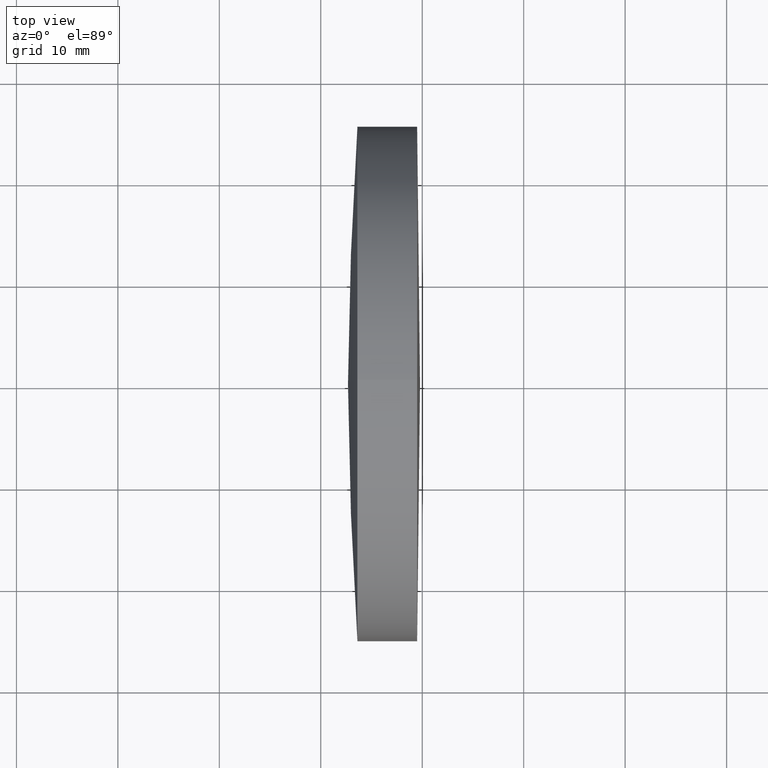
[diagram: clean part render]
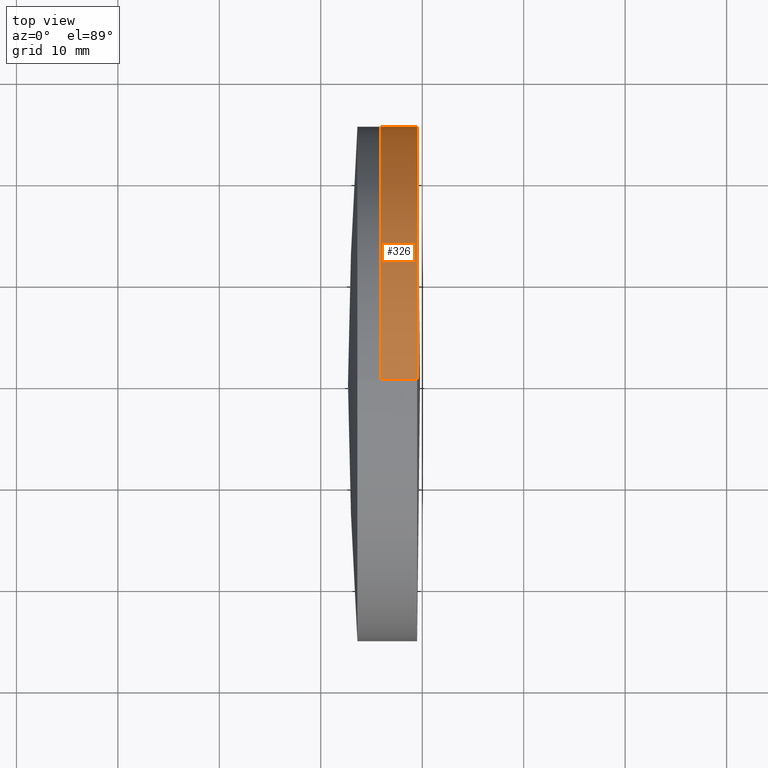
[diagram: same view with one face highlighted and labeled with its STEP entity id]
A machine part, top view. The second image highlights one B-rep face of the part: STEP entity #326.
In plain terms, the highlighted cylindrical surface (partial cylindrical patch) has radius 25.4 mm, axis along (-1, -0, -0).
Its self-contained STEP definition (entity closure, byte-faithful):
#18 = ORIENTED_EDGE ( 'NONE', *, *, #317, .T. ) ;
#23 = ORIENTED_EDGE ( 'NONE', *, *, #141, .F. ) ;
#49 = CIRCLE ( 'NONE', #313, 25.40000000000006300 ) ;
#58 = CARTESIAN_POINT ( 'NONE',  ( 715.9340020172002100, 0.0000000000000000000, 0.0000000000000000000 ) ) ;
#67 = CARTESIAN_POINT ( 'NONE',  ( 719.4956594297797200, 0.0000000000000000000, 0.0000000000000000000 ) ) ;
#68 = EDGE_LOOP ( 'NONE', ( #288, #18, #181, #23 ) ) ;
#72 = VECTOR ( 'NONE', #331, 1000.000000000000000 ) ;
#73 = CARTESIAN_POINT ( 'NONE',  ( -0.5519199926577972300, 3.110602869834265800E-015, -25.39999999999991000 ) ) ;
#75 = VERTEX_POINT ( 'NONE', #302 ) ;
#79 = VERTEX_POINT ( 'NONE', #218 ) ;
#82 = CARTESIAN_POINT ( 'NONE',  ( -0.5519199926577972300, 0.0000000000000000000, 25.39999999999991000 ) ) ;
#89 = DIRECTION ( 'NONE',  ( 0.0000000000000000000, 0.0000000000000000000, 1.000000000000000000 ) ) ;
#95 = DIRECTION ( 'NONE',  ( -1.000000000000000000, -0.0000000000000000000, -0.0000000000000000000 ) ) ;
#111 = EDGE_CURVE ( 'NONE', #120, #163, #49, .T. ) ;
#120 = VERTEX_POINT ( 'NONE', #221 ) ;
#141 = EDGE_CURVE ( 'NONE', #75, #120, #225, .T. ) ;
#156 = DIRECTION ( 'NONE',  ( -1.000000000000000000, -0.0000000000000000000, -0.0000000000000000000 ) ) ;
#162 = DIRECTION ( 'NONE',  ( 0.0000000000000000000, 0.0000000000000000000, 1.000000000000000000 ) ) ;
#163 = VERTEX_POINT ( 'NONE', #245 ) ;
#181 = ORIENTED_EDGE ( 'NONE', *, *, #111, .F. ) ;
#194 = EDGE_CURVE ( 'NONE', #75, #79, #205, .T. ) ;
#205 = CIRCLE ( 'NONE', #226, 25.39999999999975700 ) ;
#209 = LINE ( 'NONE', #73, #72 ) ;
#212 = DIRECTION ( 'NONE',  ( -1.000000000000000000, -0.0000000000000000000, -0.0000000000000000000 ) ) ;
#215 = VECTOR ( 'NONE', #156, 1000.000000000000000 ) ;
#218 = CARTESIAN_POINT ( 'NONE',  ( 719.4956594297797200, 3.110602869834256700E-015, -25.39999999999975700 ) ) ;
#221 = CARTESIAN_POINT ( 'NONE',  ( 715.9340020172002100, 0.0000000000000000000, 25.39999999999994500 ) ) ;
#223 = DIRECTION ( 'NONE',  ( -1.000000000000000000, -0.0000000000000000000, -0.0000000000000000000 ) ) ;
#225 = LINE ( 'NONE', #82, #215 ) ;
#226 = AXIS2_PLACEMENT_3D ( 'NONE', #67, #95, #89 ) ;
#245 = CARTESIAN_POINT ( 'NONE',  ( 715.9340020172002100, 3.110602869834270600E-015, -25.39999999999995200 ) ) ;
#249 = FACE_OUTER_BOUND ( 'NONE', #68, .T. ) ;
#267 = DIRECTION ( 'NONE',  ( 0.0000000000000000000, 0.0000000000000000000, 1.000000000000000000 ) ) ;
#288 = ORIENTED_EDGE ( 'NONE', *, *, #194, .T. ) ;
#302 = CARTESIAN_POINT ( 'NONE',  ( 719.4956594297797200, 0.0000000000000000000, 25.39999999999975700 ) ) ;
#303 = AXIS2_PLACEMENT_3D ( 'NONE', #308, #212, #267 ) ;
#308 = CARTESIAN_POINT ( 'NONE',  ( -0.5519199926577972300, 0.0000000000000000000, 0.0000000000000000000 ) ) ;
#313 = AXIS2_PLACEMENT_3D ( 'NONE', #58, #223, #162 ) ;
#317 = EDGE_CURVE ( 'NONE', #79, #163, #209, .T. ) ;
#326 = ADVANCED_FACE ( 'NONE', ( #249 ), #333, .T. ) ;
#331 = DIRECTION ( 'NONE',  ( -1.000000000000000000, -0.0000000000000000000, -0.0000000000000000000 ) ) ;
#333 = CYLINDRICAL_SURFACE ( 'NONE', #303, 25.39999999999991000 ) ;